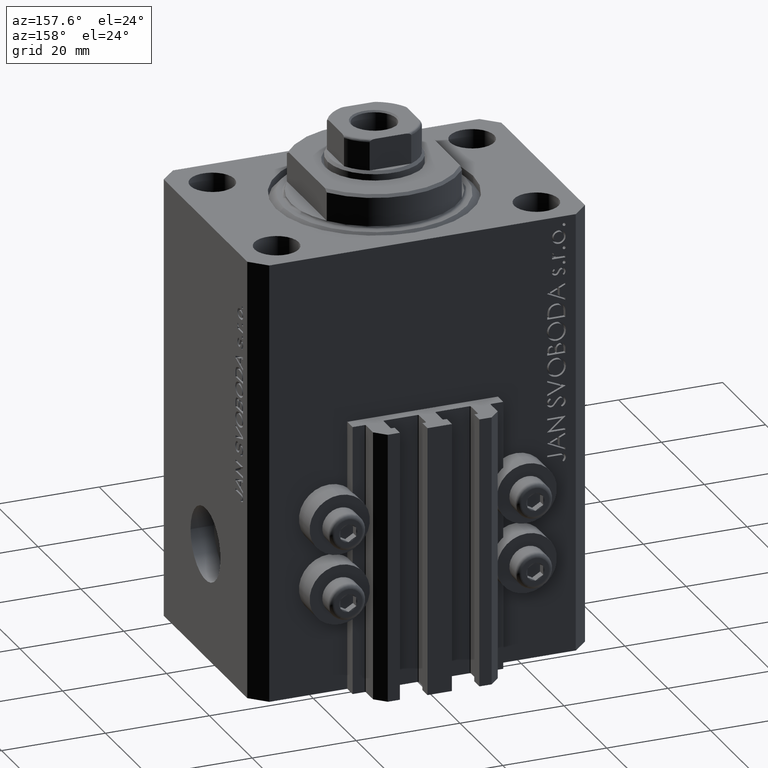
[diagram: clean part render]
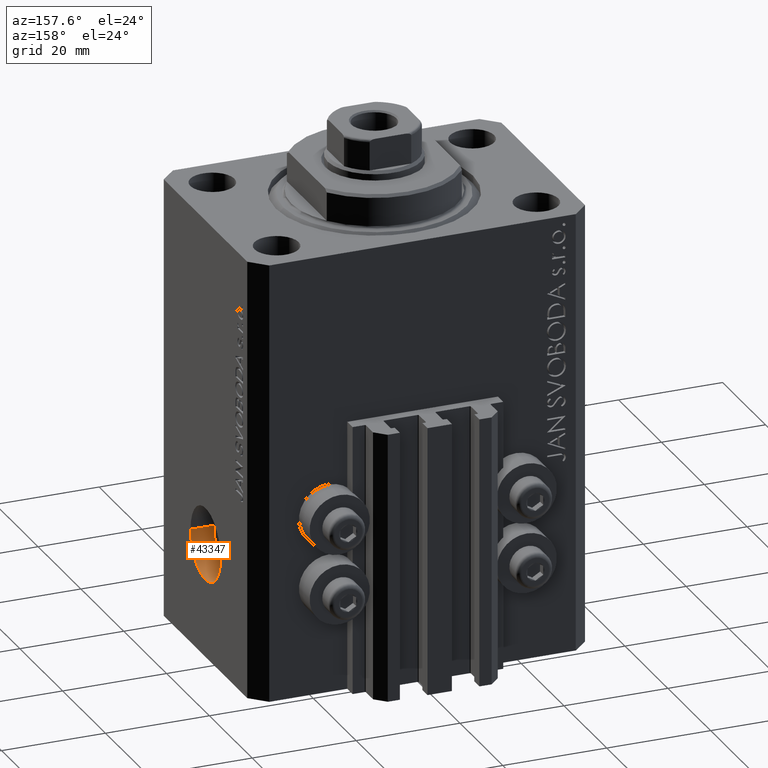
[diagram: same view with one face highlighted and labeled with its STEP entity id]
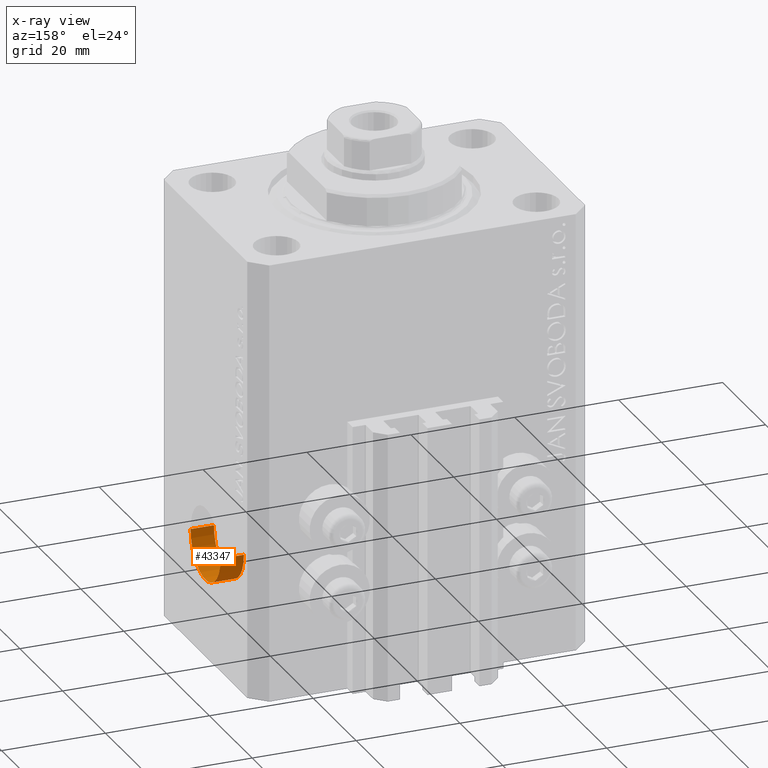
[diagram: x-ray of the same camera — body ghosted, the highlighted face saturated]
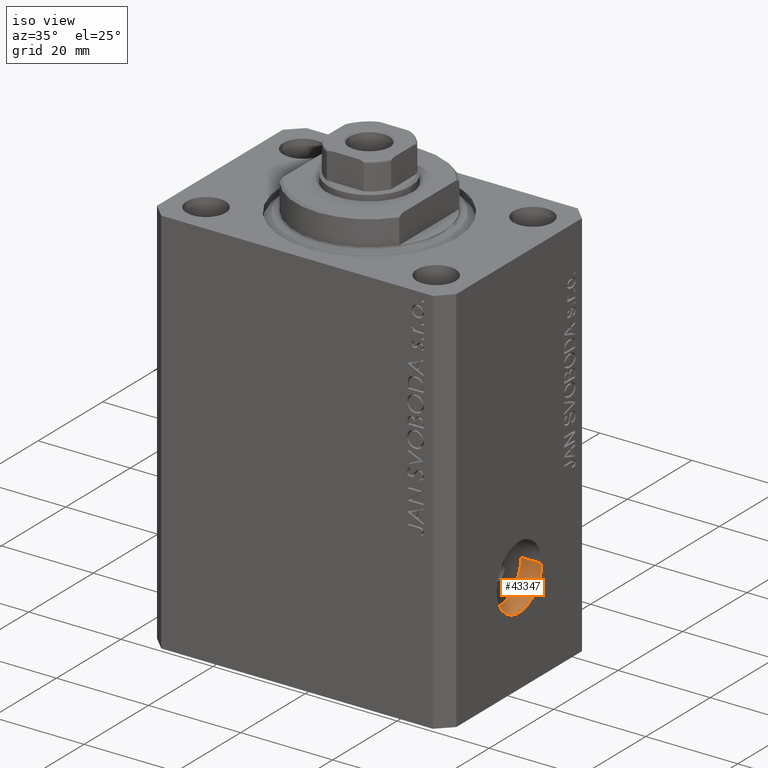
[diagram: same view with one face highlighted and labeled with its STEP entity id]
A machine part, auxiliary view. The second image highlights one B-rep face of the part: STEP entity #43347.
The next image is the same camera in x-ray: the body ghosted, the highlighted face saturated — about 0% of this face is hidden behind the body in this view.
A second angle (iso view) of the same face is appended — the face is thin or edge-on in the first view.
In plain terms, the highlighted cylindrical surface (partial cylindrical patch) has radius 7 mm, axis along (1, -0, 0).
Its self-contained STEP definition (entity closure, byte-faithful):
#1242 = VERTEX_POINT ( 'NONE', #4838 ) ;
#1903 = DIRECTION ( 'NONE',  ( 1.338215252896394112E-14, 1.000000000000000000, 0.000000000000000000 ) ) ;
#2825 = VERTEX_POINT ( 'NONE', #6095 ) ;
#3377 = CIRCLE ( 'NONE', #36334, 7.000000000000000000 ) ;
#4271 = DIRECTION ( 'NONE',  ( 1.338215252896394112E-14, 1.000000000000000000, 0.000000000000000000 ) ) ;
#4838 = CARTESIAN_POINT ( 'NONE',  ( 27.99999999999686651, 7.000000000000042633, -63.00000000000000000 ) ) ;
#5644 = VERTEX_POINT ( 'NONE', #27451 ) ;
#5697 = DIRECTION ( 'NONE',  ( 1.288651725011342390E-14, 1.000000000000000000, 0.000000000000000000 ) ) ;
#5967 = LINE ( 'NONE', #31872, #36237 ) ;
#6095 = CARTESIAN_POINT ( 'NONE',  ( 32.49999999999686651, 6.999999999999983125, -63.00000000000000000 ) ) ;
#7525 = LINE ( 'NONE', #21257, #23374 ) ;
#7872 = FACE_OUTER_BOUND ( 'NONE', #45976, .T. ) ;
#10731 = CIRCLE ( 'NONE', #25302, 7.000000000000000000 ) ;
#12795 = ORIENTED_EDGE ( 'NONE', *, *, #35952, .F. ) ;
#16024 = DIRECTION ( 'NONE',  ( 1.000000000000000000, -1.334402673828348976E-14, -0.000000000000000000 ) ) ;
#21257 = CARTESIAN_POINT ( 'NONE',  ( 27.99999999999686651, 7.000000000000042633, -63.00000000000000000 ) ) ;
#23092 = EDGE_CURVE ( 'NONE', #47362, #1242, #10731, .T. ) ;
#23237 = CYLINDRICAL_SURFACE ( 'NONE', #40294, 7.000000000000000000 ) ;
#23374 = VECTOR ( 'NONE', #28445, 1000.000000000000000 ) ;
#25302 = AXIS2_PLACEMENT_3D ( 'NONE', #42219, #38613, #1903 ) ;
#27451 = CARTESIAN_POINT ( 'NONE',  ( 32.49999999999668177, -7.000000000000018652, -63.00000000000000000 ) ) ;
#28020 = DIRECTION ( 'NONE',  ( 1.000000000000000000, -1.334402673828349134E-14, 0.000000000000000000 ) ) ;
#28053 = DIRECTION ( 'NONE',  ( 1.000000000000000000, -1.334402673828348976E-14, -0.000000000000000000 ) ) ;
#28445 = DIRECTION ( 'NONE',  ( 1.000000000000000000, -1.334402673828348976E-14, -0.000000000000000000 ) ) ;
#31872 = CARTESIAN_POINT ( 'NONE',  ( 27.99999999999668177, -6.999999999999957367, -63.00000000000000000 ) ) ;
#32060 = EDGE_CURVE ( 'NONE', #47362, #5644, #5967, .T. ) ;
#32946 = CARTESIAN_POINT ( 'NONE',  ( 27.99999999999668177, -6.999999999999957367, -63.00000000000000000 ) ) ;
#34293 = EDGE_CURVE ( 'NONE', #5644, #2825, #3377, .T. ) ;
#35952 = EDGE_CURVE ( 'NONE', #1242, #2825, #7525, .T. ) ;
#36237 = VECTOR ( 'NONE', #28053, 1000.000000000000000 ) ;
#36334 = AXIS2_PLACEMENT_3D ( 'NONE', #42167, #28020, #5697 ) ;
#38613 = DIRECTION ( 'NONE',  ( 1.000000000000000000, -1.334402673828349134E-14, 0.000000000000000000 ) ) ;
#40120 = ORIENTED_EDGE ( 'NONE', *, *, #34293, .T. ) ;
#40294 = AXIS2_PLACEMENT_3D ( 'NONE', #41215, #16024, #4271 ) ;
#41215 = CARTESIAN_POINT ( 'NONE',  ( 27.99999999999677414, 4.270088556253899177E-14, -63.00000000000000000 ) ) ;
#42167 = CARTESIAN_POINT ( 'NONE',  ( 32.49999999999677414, -1.734723475973671215E-14, -63.00000000000000000 ) ) ;
#42219 = CARTESIAN_POINT ( 'NONE',  ( 27.99999999999677414, 4.270088556253899177E-14, -63.00000000000000000 ) ) ;
#43347 = ADVANCED_FACE ( 'NONE', ( #7872 ), #23237, .F. ) ;
#43654 = ORIENTED_EDGE ( 'NONE', *, *, #32060, .T. ) ;
#45690 = ORIENTED_EDGE ( 'NONE', *, *, #23092, .F. ) ;
#45976 = EDGE_LOOP ( 'NONE', ( #45690, #43654, #40120, #12795 ) ) ;
#47362 = VERTEX_POINT ( 'NONE', #32946 ) ;